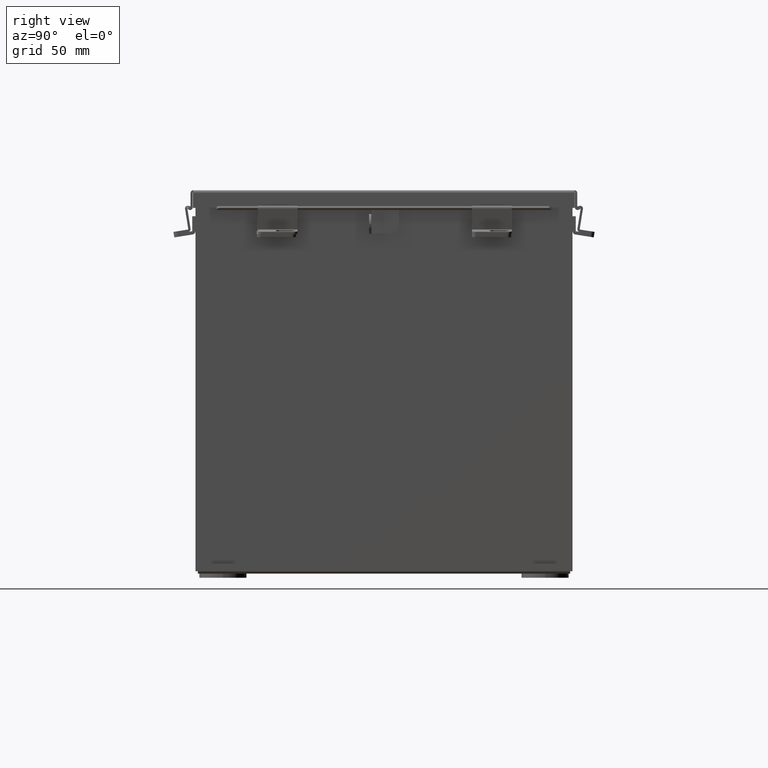
[diagram: clean part render]
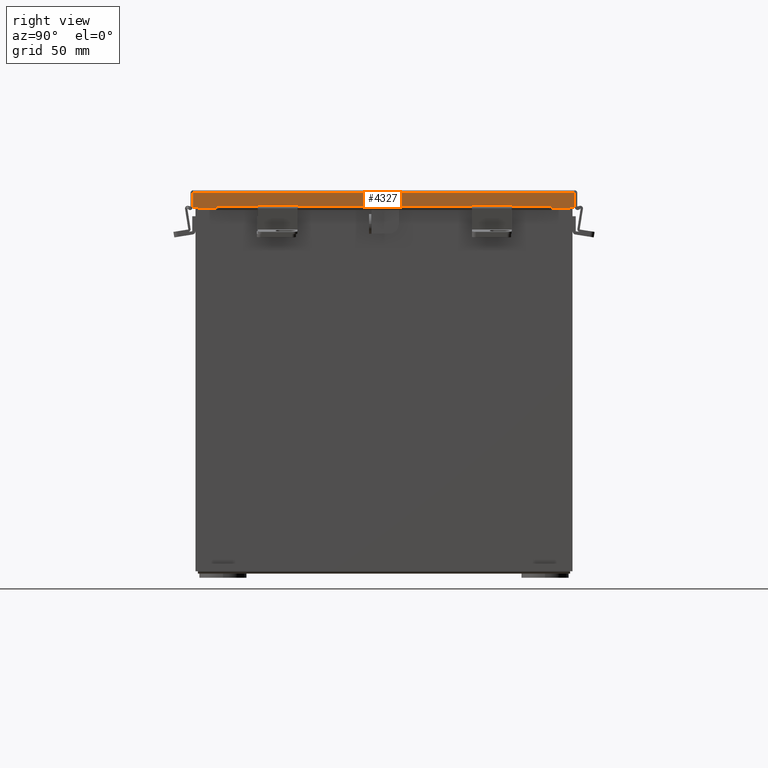
[diagram: same view with one face highlighted and labeled with its STEP entity id]
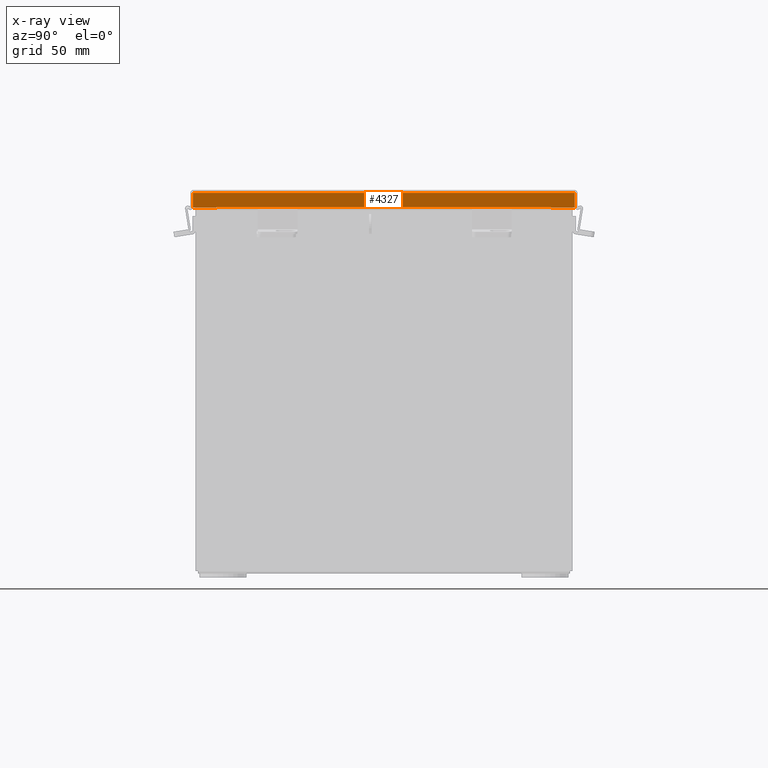
[diagram: x-ray of the same camera — body ghosted, the highlighted face saturated]
A machine part, right view. The second image highlights one B-rep face of the part: STEP entity #4327.
The next image is the same camera in x-ray: the body ghosted, the highlighted face saturated — about 0% of this face is hidden behind the body in this view.
In plain terms, the highlighted planar face has unit normal (-1, 0, -0).
Its self-contained STEP definition (entity closure, byte-faithful):
#282 = LINE ( 'NONE', #12149, #3482 ) ;
#352 = VECTOR ( 'NONE', #8649, 39.37007874015748100 ) ;
#784 = CARTESIAN_POINT ( 'NONE',  ( -6.156250000000026600, 6.074478932188125000, 0.4872999999999989000 ) ) ;
#860 = ORIENTED_EDGE ( 'NONE', *, *, #8355, .T. ) ;
#1159 = CARTESIAN_POINT ( 'NONE',  ( -6.156250000000016900, -5.324478932188145400, 0.4717115427318767100 ) ) ;
#1297 = CARTESIAN_POINT ( 'NONE',  ( -6.156250000000026600, -5.324478932188146300, 0.4872999999999989000 ) ) ;
#1341 = LINE ( 'NONE', #6525, #15136 ) ;
#1574 = CARTESIAN_POINT ( 'NONE',  ( -6.156250000000016900, -5.324478932188145400, 0.4717115427318767100 ) ) ;
#1596 = LINE ( 'NONE', #12247, #5118 ) ;
#1634 = AXIS2_PLACEMENT_3D ( 'NONE', #7108, #12093, #8417 ) ;
#1915 = ORIENTED_EDGE ( 'NONE', *, *, #6487, .F. ) ;
#2594 = VERTEX_POINT ( 'NONE', #10681 ) ;
#3070 = CARTESIAN_POINT ( 'NONE',  ( -6.156250000000024000, 6.074478932188125000, 0.01300000000000010700 ) ) ;
#3243 = ORIENTED_EDGE ( 'NONE', *, *, #4732, .T. ) ;
#3482 = VECTOR ( 'NONE', #4824, 39.37007874015748100 ) ;
#3966 = VERTEX_POINT ( 'NONE', #6804 ) ;
#4327 = ADVANCED_FACE ( 'NONE', ( #12531 ), #9523, .F. ) ;
#4541 = EDGE_CURVE ( 'NONE', #9657, #11260, #6816, .T. ) ;
#4732 = EDGE_CURVE ( 'NONE', #3966, #6570, #1341, .T. ) ;
#4764 = EDGE_CURVE ( 'NONE', #5946, #9657, #15152, .T. ) ;
#4824 = DIRECTION ( 'NONE',  ( -4.484872552701444900E-015, -3.771741203087944500E-030, 1.000000000000000000 ) ) ;
#4949 = EDGE_CURVE ( 'NONE', #2594, #11371, #1596, .T. ) ;
#5118 = VECTOR ( 'NONE', #5487, 39.37007874015748100 ) ;
#5244 = CARTESIAN_POINT ( 'NONE',  ( -6.156250000000028400, 5.324478932188123200, 0.4872999999999989000 ) ) ;
#5487 = DIRECTION ( 'NONE',  ( 1.300855605617851200E-030, 1.000000000000000000, -3.451266460341926600E-030 ) ) ;
#5531 = LINE ( 'NONE', #7759, #14843 ) ;
#5946 = VERTEX_POINT ( 'NONE', #8978 ) ;
#6432 = VECTOR ( 'NONE', #9115, 39.37007874015748100 ) ;
#6487 = EDGE_CURVE ( 'NONE', #3966, #5946, #13293, .T. ) ;
#6525 = CARTESIAN_POINT ( 'NONE',  ( -6.156250000000026600, 0.0000000000000000000, 0.4873000000000011200 ) ) ;
#6570 = VERTEX_POINT ( 'NONE', #784 ) ;
#6804 = CARTESIAN_POINT ( 'NONE',  ( -6.156250000000026600, 5.324478932188123200, 0.4872999999999989000 ) ) ;
#6816 = LINE ( 'NONE', #1159, #13463 ) ;
#6949 = CARTESIAN_POINT ( 'NONE',  ( -6.156250000000016900, 5.324478932188123200, 0.4717115427318789300 ) ) ;
#7108 = CARTESIAN_POINT ( 'NONE',  ( -6.156250000000024000, 0.0000000000000000000, -2.622574073917692700E-014 ) ) ;
#7725 = ORIENTED_EDGE ( 'NONE', *, *, #14420, .T. ) ;
#7759 = CARTESIAN_POINT ( 'NONE',  ( -6.156250000000024000, 6.074478932188125000, 0.0000000000000000000 ) ) ;
#8295 = EDGE_CURVE ( 'NONE', #11371, #6570, #5531, .T. ) ;
#8355 = EDGE_CURVE ( 'NONE', #2594, #13981, #282, .T. ) ;
#8417 = DIRECTION ( 'NONE',  ( 4.484872552701444900E-015, 3.771741203087944500E-030, -1.000000000000000000 ) ) ;
#8649 = DIRECTION ( 'NONE',  ( 1.300855605617851200E-030, 1.000000000000000000, -3.451266460341926600E-030 ) ) ;
#8687 = DIRECTION ( 'NONE',  ( -4.484872552701444900E-015, -3.771741203087944500E-030, 1.000000000000000000 ) ) ;
#8746 = DIRECTION ( 'NONE',  ( 1.401985044024098500E-013, 3.549874073494535600E-030, -1.000000000000000000 ) ) ;
#8978 = CARTESIAN_POINT ( 'NONE',  ( -6.156250000000016900, 5.324478932188123200, 0.4717115427318789300 ) ) ;
#9115 = DIRECTION ( 'NONE',  ( -1.300855605617851200E-030, -1.000000000000000000, 3.451266460341926600E-030 ) ) ;
#9468 = CARTESIAN_POINT ( 'NONE',  ( -6.156250000000026600, -6.074478932188148900, 0.4872999999999989000 ) ) ;
#9523 = PLANE ( 'NONE',  #1634 ) ;
#9657 = VERTEX_POINT ( 'NONE', #1574 ) ;
#10681 = CARTESIAN_POINT ( 'NONE',  ( -6.156250000000024000, -6.074478932188148900, 0.01300000000000010700 ) ) ;
#10736 = DIRECTION ( 'NONE',  ( 1.300855605617851200E-030, 1.000000000000000000, -3.451266460341926600E-030 ) ) ;
#11260 = VERTEX_POINT ( 'NONE', #1297 ) ;
#11346 = EDGE_LOOP ( 'NONE', ( #1915, #3243, #14880, #13763, #860, #7725, #15581, #13396 ) ) ;
#11371 = VERTEX_POINT ( 'NONE', #3070 ) ;
#11976 = CARTESIAN_POINT ( 'NONE',  ( -6.156250000000026600, 0.0000000000000000000, 0.4873000000000011200 ) ) ;
#12026 = DIRECTION ( 'NONE',  ( -7.009925220120339900E-014, -7.009925220120314700E-014, 1.000000000000000000 ) ) ;
#12093 = DIRECTION ( 'NONE',  ( 1.000000000000000000, 1.654252790354498900E-030, 4.484872552701444900E-015 ) ) ;
#12149 = CARTESIAN_POINT ( 'NONE',  ( -6.156250000000024000, -6.074478932188148900, -2.841121913410833900E-014 ) ) ;
#12247 = CARTESIAN_POINT ( 'NONE',  ( -6.156250000000024000, 6.156249999999985800, 0.01300000000000010700 ) ) ;
#12531 = FACE_OUTER_BOUND ( 'NONE', #11346, .T. ) ;
#13293 = LINE ( 'NONE', #5244, #13575 ) ;
#13396 = ORIENTED_EDGE ( 'NONE', *, *, #4764, .F. ) ;
#13463 = VECTOR ( 'NONE', #12026, 39.37007874015748100 ) ;
#13562 = LINE ( 'NONE', #11976, #352 ) ;
#13575 = VECTOR ( 'NONE', #8746, 39.37007874015748100 ) ;
#13763 = ORIENTED_EDGE ( 'NONE', *, *, #4949, .F. ) ;
#13981 = VERTEX_POINT ( 'NONE', #9468 ) ;
#14420 = EDGE_CURVE ( 'NONE', #13981, #11260, #13562, .T. ) ;
#14843 = VECTOR ( 'NONE', #8687, 39.37007874015748100 ) ;
#14880 = ORIENTED_EDGE ( 'NONE', *, *, #8295, .F. ) ;
#15136 = VECTOR ( 'NONE', #10736, 39.37007874015748100 ) ;
#15152 = LINE ( 'NONE', #6949, #6432 ) ;
#15581 = ORIENTED_EDGE ( 'NONE', *, *, #4541, .F. ) ;